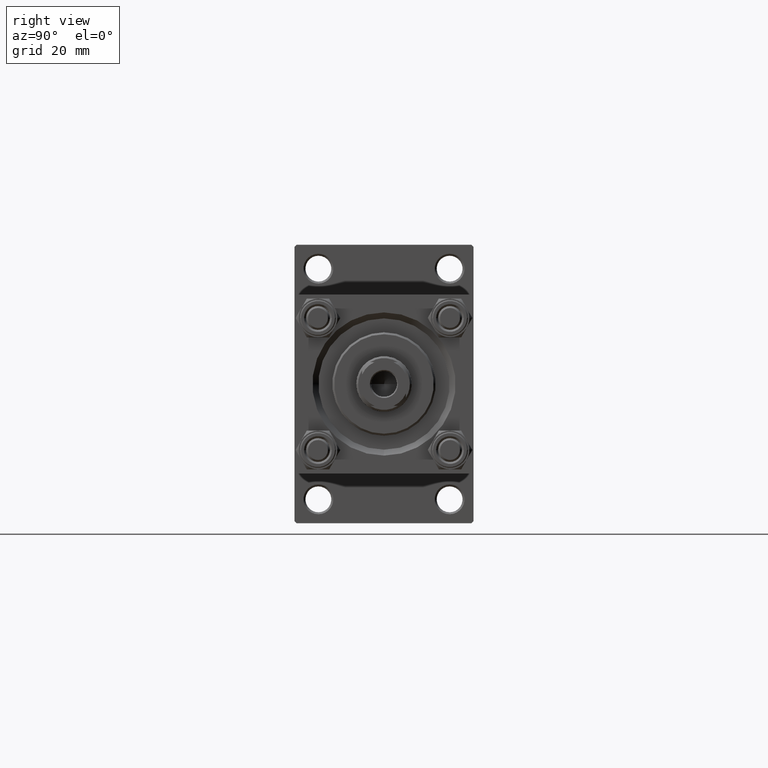
[diagram: clean part render]
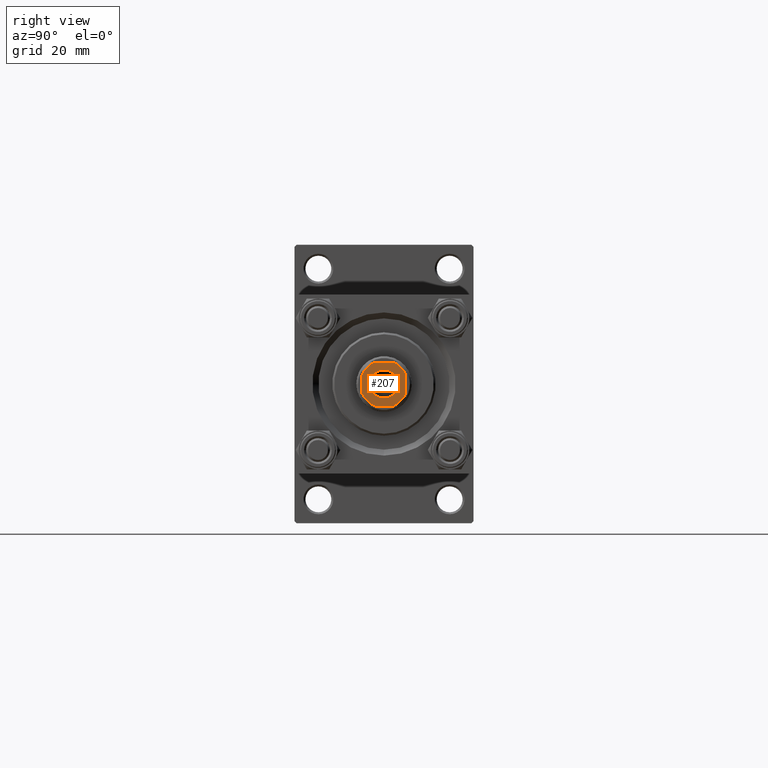
[diagram: same view with one face highlighted and labeled with its STEP entity id]
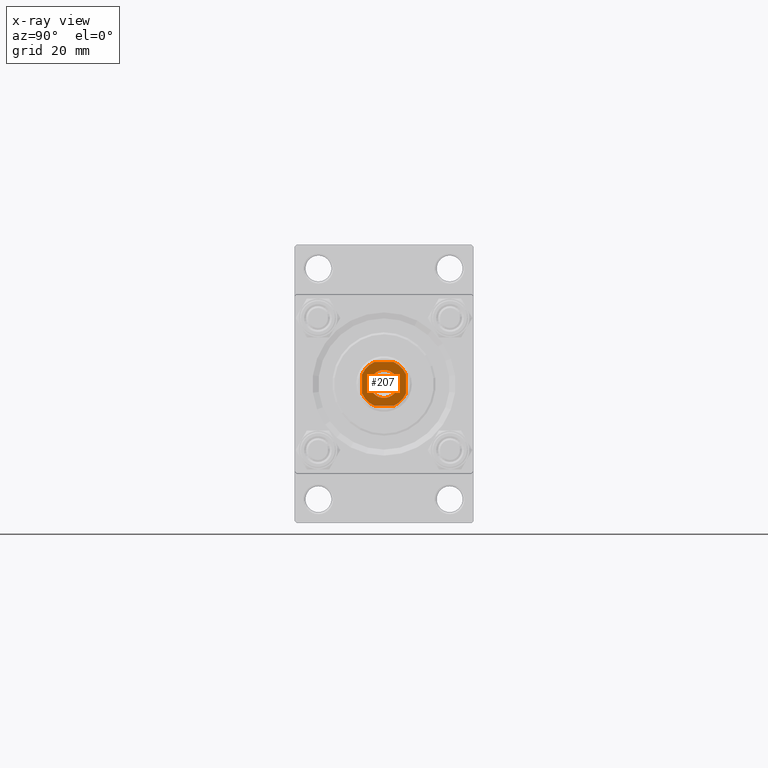
[diagram: x-ray of the same camera — body ghosted, the highlighted face saturated]
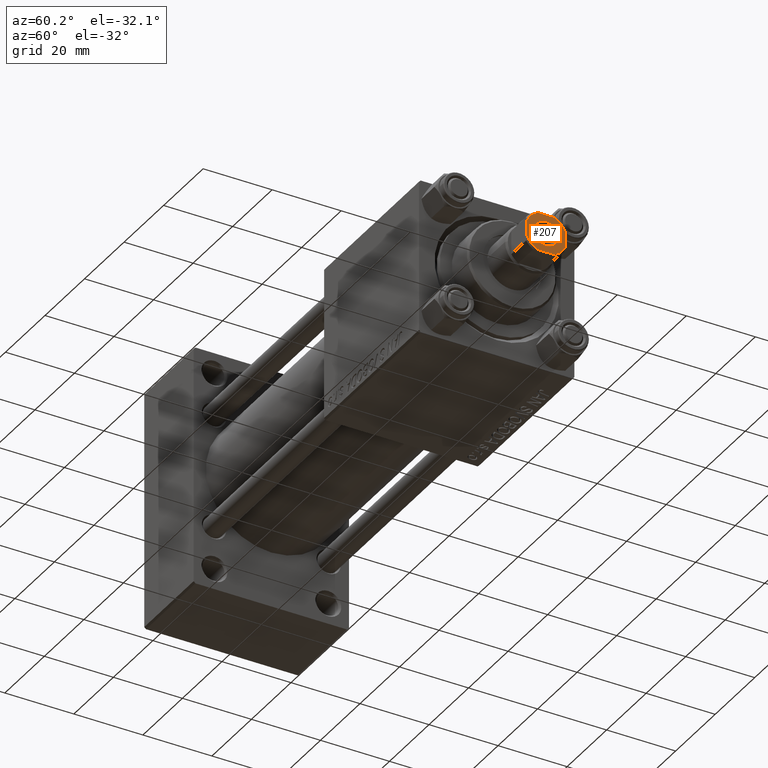
[diagram: same view with one face highlighted and labeled with its STEP entity id]
A machine part, right view. The second image highlights one B-rep face of the part: STEP entity #207.
The next image is the same camera in x-ray: the body ghosted, the highlighted face saturated — about 0% of this face is hidden behind the body in this view.
A second angle (auxiliary view) of the same face is appended — the face is thin or edge-on in the first view.
In plain terms, the highlighted planar face has unit normal (1, 0, 0).
Its self-contained STEP definition (entity closure, byte-faithful):
#207 = ADVANCED_FACE ( 'NONE', ( #10230, #22340 ), #37746, .T. ) ;
#566 = CARTESIAN_POINT ( 'NONE',  ( -3.549999999999998046, 4.347496136973101901E-16, 139.0000000000000000 ) ) ;
#1337 = LINE ( 'NONE', #28110, #43261 ) ;
#1863 = EDGE_CURVE ( 'NONE', #19510, #40662, #15483, .T. ) ;
#2307 = LINE ( 'NONE', #32640, #11780 ) ;
#2684 = VERTEX_POINT ( 'NONE', #566 ) ;
#3231 = ORIENTED_EDGE ( 'NONE', *, *, #13568, .T. ) ;
#4398 = VECTOR ( 'NONE', #42452, 1000.000000000000000 ) ;
#4413 = ORIENTED_EDGE ( 'NONE', *, *, #23050, .T. ) ;
#4574 = LINE ( 'NONE', #31600, #4398 ) ;
#5135 = DIRECTION ( 'NONE',  ( -1.000000000000000000, -7.885106708985487801E-17, -0.000000000000000000 ) ) ;
#5225 = CIRCLE ( 'NONE', #28612, 5.999999999999968914 ) ;
#5867 = DIRECTION ( 'NONE',  ( 1.000000000000000000, 0.000000000000000000, 0.000000000000000000 ) ) ;
#6135 = VERTEX_POINT ( 'NONE', #44874 ) ;
#7438 = ORIENTED_EDGE ( 'NONE', *, *, #23679, .T. ) ;
#8104 = CARTESIAN_POINT ( 'NONE',  ( 0.000000000000000000, 0.000000000000000000, 139.0000000000000000 ) ) ;
#8834 = EDGE_CURVE ( 'NONE', #40662, #35924, #24473, .T. ) ;
#9150 = AXIS2_PLACEMENT_3D ( 'NONE', #31655, #23305, #11701 ) ;
#9332 = CARTESIAN_POINT ( 'NONE',  ( 3.549999999999998046, 0.000000000000000000, 139.0000000000000000 ) ) ;
#10230 = FACE_BOUND ( 'NONE', #25983, .T. ) ;
#11652 = DIRECTION ( 'NONE',  ( 1.000000000000000000, 0.000000000000000000, 0.000000000000000000 ) ) ;
#11693 = DIRECTION ( 'NONE',  ( 1.577021341797097560E-16, -1.000000000000000000, 0.000000000000000000 ) ) ;
#11701 = DIRECTION ( 'NONE',  ( 1.000000000000000000, 0.000000000000000000, 0.000000000000000000 ) ) ;
#11780 = VECTOR ( 'NONE', #5867, 1000.000000000000000 ) ;
#12072 = EDGE_CURVE ( 'NONE', #20410, #27091, #5225, .T. ) ;
#12076 = AXIS2_PLACEMENT_3D ( 'NONE', #15027, #44834, #18555 ) ;
#13054 = ORIENTED_EDGE ( 'NONE', *, *, #8834, .T. ) ;
#13568 = EDGE_CURVE ( 'NONE', #2684, #44297, #25523, .T. ) ;
#13894 = CARTESIAN_POINT ( 'NONE',  ( 0.000000000000000000, 0.000000000000000000, 139.0000000000000000 ) ) ;
#14544 = DIRECTION ( 'NONE',  ( -0.000000000000000000, 0.000000000000000000, 1.000000000000000000 ) ) ;
#14770 = DIRECTION ( 'NONE',  ( 1.000000000000000000, 0.000000000000000000, 0.000000000000000000 ) ) ;
#15027 = CARTESIAN_POINT ( 'NONE',  ( 0.000000000000000000, 0.000000000000000000, 139.0000000000000000 ) ) ;
#15483 = LINE ( 'NONE', #42254, #44385 ) ;
#15538 = EDGE_LOOP ( 'NONE', ( #37323, #47944, #7438, #17244, #20090, #13054, #4413, #38345 ) ) ;
#16059 = ORIENTED_EDGE ( 'NONE', *, *, #27086, .T. ) ;
#16199 = CARTESIAN_POINT ( 'NONE',  ( 5.500000000000000000, 2.397915761656283617, 139.0000000000000000 ) ) ;
#17244 = ORIENTED_EDGE ( 'NONE', *, *, #34536, .T. ) ;
#18555 = DIRECTION ( 'NONE',  ( 1.000000000000000000, 0.000000000000000000, 0.000000000000000000 ) ) ;
#19453 = EDGE_CURVE ( 'NONE', #46331, #20410, #4574, .T. ) ;
#19510 = VERTEX_POINT ( 'NONE', #23505 ) ;
#20055 = CARTESIAN_POINT ( 'NONE',  ( 2.397915761656331135, -5.500000000000000000, 139.0000000000000000 ) ) ;
#20090 = ORIENTED_EDGE ( 'NONE', *, *, #1863, .T. ) ;
#20410 = VERTEX_POINT ( 'NONE', #16199 ) ;
#20827 = CARTESIAN_POINT ( 'NONE',  ( -2.397915761656331135, -5.500000000000000000, 139.0000000000000000 ) ) ;
#22181 = CARTESIAN_POINT ( 'NONE',  ( 0.000000000000000000, 0.000000000000000000, 139.0000000000000000 ) ) ;
#22340 = FACE_OUTER_BOUND ( 'NONE', #15538, .T. ) ;
#23050 = EDGE_CURVE ( 'NONE', #35924, #39363, #2307, .T. ) ;
#23305 = DIRECTION ( 'NONE',  ( -0.000000000000000000, 0.000000000000000000, 1.000000000000000000 ) ) ;
#23505 = CARTESIAN_POINT ( 'NONE',  ( -5.500000000000000000, 2.397915761656279621, 139.0000000000000000 ) ) ;
#23679 = EDGE_CURVE ( 'NONE', #27091, #6135, #1337, .T. ) ;
#24473 = CIRCLE ( 'NONE', #9150, 5.999999999999987566 ) ;
#25523 = CIRCLE ( 'NONE', #35211, 3.549999999999998046 ) ;
#25983 = EDGE_LOOP ( 'NONE', ( #16059, #3231 ) ) ;
#26371 = CARTESIAN_POINT ( 'NONE',  ( 0.000000000000000000, 0.000000000000000000, 139.0000000000000000 ) ) ;
#27086 = EDGE_CURVE ( 'NONE', #44297, #2684, #44154, .T. ) ;
#27091 = VERTEX_POINT ( 'NONE', #42712 ) ;
#27542 = CARTESIAN_POINT ( 'NONE',  ( 5.500000000000000000, -2.397915761656329803, 139.0000000000000000 ) ) ;
#28110 = CARTESIAN_POINT ( 'NONE',  ( -5.500000000000000888, 5.500000000000000000, 139.0000000000000000 ) ) ;
#28135 = AXIS2_PLACEMENT_3D ( 'NONE', #33738, #14544, #30195 ) ;
#28542 = DIRECTION ( 'NONE',  ( -0.000000000000000000, 0.000000000000000000, 1.000000000000000000 ) ) ;
#28612 = AXIS2_PLACEMENT_3D ( 'NONE', #13894, #28542, #44698 ) ;
#30195 = DIRECTION ( 'NONE',  ( 1.000000000000000000, 0.000000000000000000, 0.000000000000000000 ) ) ;
#31600 = CARTESIAN_POINT ( 'NONE',  ( 5.499999999999999112, 5.500000000000000888, 139.0000000000000000 ) ) ;
#31655 = CARTESIAN_POINT ( 'NONE',  ( 0.000000000000000000, 0.000000000000000000, 139.0000000000000000 ) ) ;
#32640 = CARTESIAN_POINT ( 'NONE',  ( -5.499999999999999112, -5.500000000000000000, 139.0000000000000000 ) ) ;
#33738 = CARTESIAN_POINT ( 'NONE',  ( 0.000000000000000000, 0.000000000000000000, 139.0000000000000000 ) ) ;
#33790 = CIRCLE ( 'NONE', #28135, 5.999999999999968026 ) ;
#33972 = DIRECTION ( 'NONE',  ( 0.000000000000000000, -0.000000000000000000, -1.000000000000000000 ) ) ;
#34153 = EDGE_CURVE ( 'NONE', #39363, #46331, #43463, .T. ) ;
#34536 = EDGE_CURVE ( 'NONE', #6135, #19510, #33790, .T. ) ;
#35211 = AXIS2_PLACEMENT_3D ( 'NONE', #26371, #33972, #14770 ) ;
#35924 = VERTEX_POINT ( 'NONE', #20827 ) ;
#36220 = AXIS2_PLACEMENT_3D ( 'NONE', #22181, #37586, #45423 ) ;
#37323 = ORIENTED_EDGE ( 'NONE', *, *, #19453, .T. ) ;
#37586 = DIRECTION ( 'NONE',  ( -0.000000000000000000, 0.000000000000000000, 1.000000000000000000 ) ) ;
#37746 = PLANE ( 'NONE',  #12076 ) ;
#38345 = ORIENTED_EDGE ( 'NONE', *, *, #34153, .T. ) ;
#39363 = VERTEX_POINT ( 'NONE', #20055 ) ;
#40662 = VERTEX_POINT ( 'NONE', #46997 ) ;
#41739 = AXIS2_PLACEMENT_3D ( 'NONE', #8104, #46253, #11652 ) ;
#42254 = CARTESIAN_POINT ( 'NONE',  ( -5.500000000000000888, 5.500000000000000000, 139.0000000000000000 ) ) ;
#42452 = DIRECTION ( 'NONE',  ( -1.577021341797097560E-16, 1.000000000000000000, -0.000000000000000000 ) ) ;
#42712 = CARTESIAN_POINT ( 'NONE',  ( 2.397915761656280953, 5.500000000000000888, 139.0000000000000000 ) ) ;
#43261 = VECTOR ( 'NONE', #5135, 1000.000000000000000 ) ;
#43463 = CIRCLE ( 'NONE', #36220, 5.999999999999987566 ) ;
#44154 = CIRCLE ( 'NONE', #41739, 3.549999999999998046 ) ;
#44297 = VERTEX_POINT ( 'NONE', #9332 ) ;
#44385 = VECTOR ( 'NONE', #11693, 1000.000000000000000 ) ;
#44698 = DIRECTION ( 'NONE',  ( 1.000000000000000000, 0.000000000000000000, 0.000000000000000000 ) ) ;
#44834 = DIRECTION ( 'NONE',  ( -0.000000000000000000, 0.000000000000000000, 1.000000000000000000 ) ) ;
#44874 = CARTESIAN_POINT ( 'NONE',  ( -2.397915761656278288, 5.500000000000000888, 139.0000000000000000 ) ) ;
#45423 = DIRECTION ( 'NONE',  ( 1.000000000000000000, 0.000000000000000000, 0.000000000000000000 ) ) ;
#46253 = DIRECTION ( 'NONE',  ( 0.000000000000000000, -0.000000000000000000, -1.000000000000000000 ) ) ;
#46331 = VERTEX_POINT ( 'NONE', #27542 ) ;
#46997 = CARTESIAN_POINT ( 'NONE',  ( -5.500000000000000000, -2.397915761656331579, 139.0000000000000000 ) ) ;
#47944 = ORIENTED_EDGE ( 'NONE', *, *, #12072, .T. ) ;